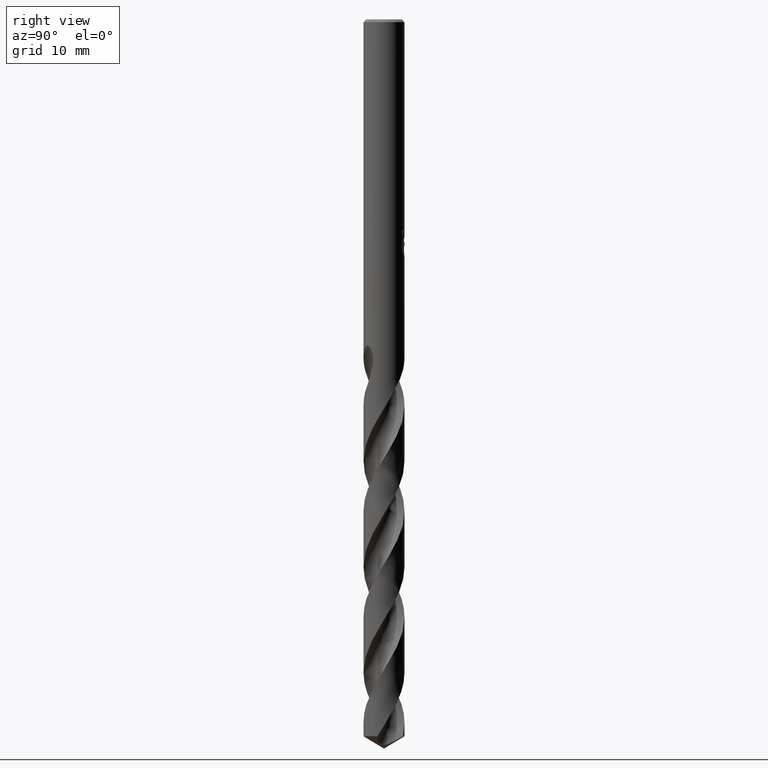
[diagram: clean part render]
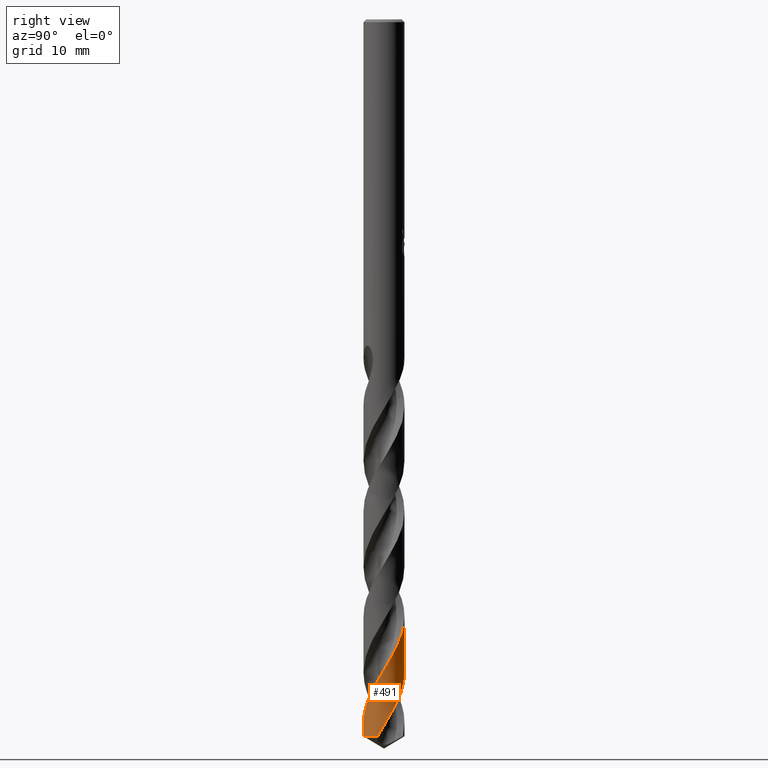
[diagram: same view with one face highlighted and labeled with its STEP entity id]
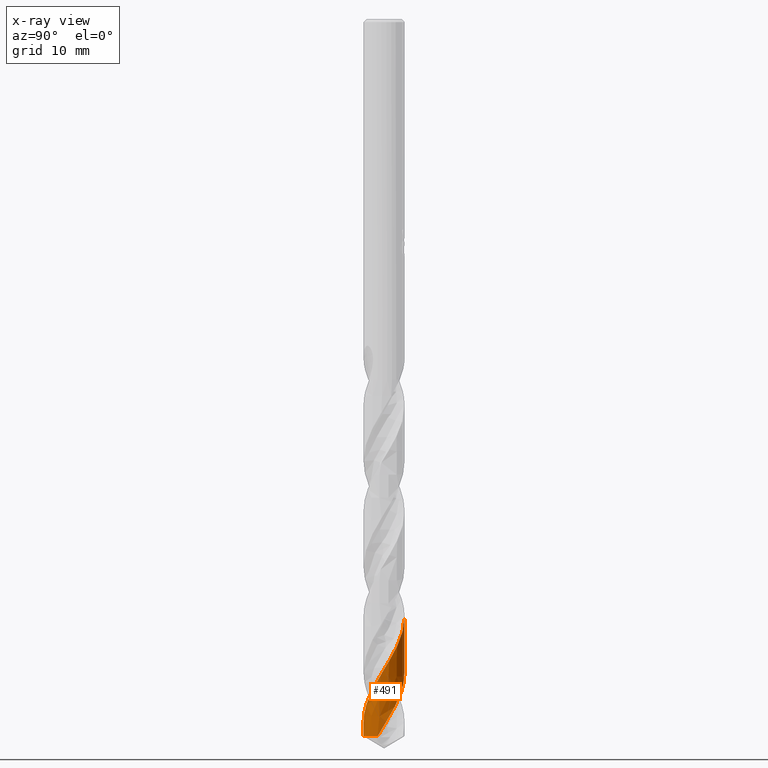
[diagram: x-ray of the same camera — body ghosted, the highlighted face saturated]
A machine part, right view. The second image highlights one B-rep face of the part: STEP entity #491.
The next image is the same camera in x-ray: the body ghosted, the highlighted face saturated — about 0% of this face is hidden behind the body in this view.
In plain terms, the highlighted conical surface has half-angle 0 deg.
Its self-contained STEP definition (entity closure, byte-faithful):
#279=EDGE_CURVE('',#505,#573,#778,.T.);
#297=EDGE_CURVE('',#361,#573,#797,.T.);
#361=VERTEX_POINT('',#869);
#423=VERTEX_POINT('',#937);
#425=EDGE_CURVE('',#505,#749,#939,.T.);
#491=ADVANCED_FACE('',(#1011),#1012,.T.);
#505=VERTEX_POINT('',#1027);
#511=EDGE_CURVE('',#361,#423,#1034,.T.);
#573=VERTEX_POINT('',#1103);
#607=EDGE_CURVE('',#749,#423,#1138,.T.);
#749=VERTEX_POINT('',#1292);
#778=B_SPLINE_CURVE_WITH_KNOTS('',3,(#1334,#1335,#1336,#1337,#1338,#1339,#1340,#1341,#1342,#1343,#1344,#1345,#1346,#1347,#1348,#1349,#1350,#1351,#1352,#1353,#1354,#1355,#1356,#1357,#1358,#1359,#1360,#1361,#1362,#1363,#1364,#1365,#1366,#1367,#1368,#1369,#1370,#1371,#1372,#1373,#1374,#1375,#1376,#1377,#1378,#1379,#1380,#1381,#1382,#1383,#1384,#1385,#1386,#1387,#1388,#1389,#1390,#1391,#1392,#1393,#1394,#1395,#1396,#1397,#1398,#1399,#1400,#1401,#1402,#1403,#1404,#1405,#1406,#1407,#1408,#1409,#1410,#1411,#1412,#1413,#1414,#1415,#1416,#1417,#1418,#1419,#1420,#1421,#1422,#1423,#1424,#1425,#1426,#1427,#1428,#1429,#1430,#1431,#1432,#1433,#1434,#1435,#1436,#1437,#1438,#1439,#1440,#1441,#1442,#1443,#1444,#1445,#1446,#1447,#1448,#1449,#1450,#1451,#1452,#1453,#1454,#1455,#1456,#1457,#1458,#1459,#1460,#1461,#1462,#1463,#1464,#1465,#1466,#1467,#1468,#1469,#1470,#1471,#1472,#1473,#1474,#1475,#1476,#1477,#1478,#1479,#1480,#1481),.UNSPECIFIED.,.F.,.F.,(4,2,2,2,2,2,2,2,2,2,2,2,2,2,2,2,2,2,2,2,2,2,2,2,2,2,2,2,2,2,2,2,2,2,2,2,2,2,2,2,2,2,2,2,2,2,2,2,2,2,2,2,2,2,2,2,2,2,2,2,2,2,2,2,2,2,2,2,2,2,2,2,2,4),(0.0,0.702120682108093,1.07274663117526,1.80338763568969,2.60304496966276,3.28402904088555,4.08200615143263,4.77401505445868,5.50854098786023,6.23454205250306,6.96847340817403,7.69617759174085,8.42969972122003,8.60829769339163,8.91638050688958,9.9908706176955,10.7163177623126,11.4520531624264,12.1782229034798,12.9133688147303,13.6413771510431,14.3760715093308,15.1057112594362,15.8400358501375,16.023758760494,16.3347975822184,17.4002800444994,18.1271362069396,18.8637922216987,19.5716694678996,20.3711283019373,21.1238067314638,21.9250453326184,22.5909097910908,23.3272713546039,24.0552669489787,24.7910893113764,25.5208424151199,26.3200625959287,27.0661025662939,27.8669089048403,28.5347123810873,29.2707405888273,29.998396321843,30.7338910959093,31.4632935118158,32.1983824197556,32.3777525284186,32.6867052124423,33.7619131881532,34.4921537839581,35.229526246712,35.9572415328643,36.69401615199,37.4235829383381,38.1599811939801,38.8911401154989,39.6269417773161,39.8109816986905,40.1178922865056,41.1779826150124,41.7263281565589,42.386784754348,43.2090884282347,43.4991619088045,44.7178406308594,45.169032849135,45.320487882245,45.4127045600733,45.4876222307573,45.5737903312194,45.7236627853465,46.0687443121665,46.5933376077372),.UNSPECIFIED.);
#797=LINE('',#1535,#1536);
#869=CARTESIAN_POINT('',(2.1879821291696E-013,2.24996653400407,-65.5467742340443));
#937=CARTESIAN_POINT('',(7.24319396396006E-015,-2.24999616208758,-77.1455952104852));
#939=CIRCLE('',#3833,2.25);
#1011=FACE_OUTER_BOUND('',#5325,.T.);
#1012=CONICAL_SURFACE('',#5326,2.24995,2.55440475941274E-006);
#1027=CARTESIAN_POINT('',(2.13435979439722,-0.712045130634758,-78.648063607188));
#1034=B_SPLINE_CURVE_WITH_KNOTS('',3,(#5536,#5537,#5538,#5539,#5540,#5541,#5542,#5543,#5544,#5545,#5546,#5547,#5548,#5549,#5550,#5551,#5552,#5553,#5554,#5555,#5556,#5557,#5558,#5559,#5560,#5561,#5562,#5563,#5564,#5565,#5566,#5567,#5568,#5569,#5570,#5571,#5572,#5573,#5574,#5575,#5576,#5577,#5578,#5579,#5580,#5581,#5582,#5583,#5584,#5585,#5586,#5587,#5588,#5589,#5590,#5591,#5592,#5593,#5594,#5595,#5596,#5597,#5598,#5599,#5600,#5601,#5602,#5603,#5604,#5605,#5606,#5607,#5608,#5609,#5610,#5611,#5612,#5613,#5614,#5615,#5616,#5617,#5618,#5619,#5620,#5621,#5622,#5623,#5624,#5625,#5626,#5627,#5628,#5629,#5630,#5631,#5632,#5633,#5634,#5635,#5636,#5637,#5638,#5639,#5640,#5641,#5642,#5643,#5644,#5645,#5646,#5647,#5648,#5649,#5650,#5651,#5652,#5653,#5654,#5655,#5656,#5657,#5658,#5659,#5660,#5661,#5662,#5663,#5664,#5665,#5666,#5667,#5668,#5669,#5670,#5671,#5672,#5673,#5674,#5675,#5676,#5677,#5678,#5679,#5680,#5681,#5682,#5683,#5684,#5685,#5686,#5687,#5688,#5689,#5690,#5691,#5692,#5693,#5694,#5695,#5696,#5697,#5698,#5699,#5700,#5701,#5702,#5703,#5704,#5705,#5706,#5707,#5708,#5709,#5710,#5711,#5712,#5713,#5714,#5715,#5716,#5717,#5718,#5719),.UNSPECIFIED.,.F.,.F.,(4,2,2,2,2,2,2,2,2,2,2,2,2,2,2,2,2,2,2,2,2,2,2,2,2,2,2,2,2,2,2,2,2,2,2,2,2,2,2,2,2,2,2,2,2,2,2,2,2,2,2,2,2,2,2,2,2,2,2,2,2,2,2,2,2,2,2,2,2,2,2,2,2,2,2,2,2,2,2,2,2,2,2,2,2,2,2,2,2,2,2,4),(0.0,0.113528017522762,0.182438752874555,0.191622563886129,0.196536742648031,0.199201707116549,0.201555536746268,0.203670514373242,0.205587701841331,0.2073390296175,0.208949757993832,0.210440173346031,0.211826785117802,0.213123189273374,0.214340701309492,0.487283281123833,0.551390927377459,0.586435756318567,0.615827112975256,0.650627689348066,0.713643294716692,0.800831219209486,1.15238975931798,1.38129947078745,1.81811965438008,2.71100722602999,3.07568403185272,4.1770227017457,4.60158154874718,5.54816069626624,5.98303403937285,6.72648345275203,7.50853321959851,8.40125467968831,8.87427129227954,9.56272843319645,9.95626947985988,10.3419958014934,11.0629774348866,11.8441419324168,12.739956282336,13.2050916335964,13.8914878884346,14.2849711571157,14.6731317380202,15.3944961955913,16.1754017082698,17.0752611424413,17.5343243207279,18.2181234528727,18.6115459991417,19.0021064402144,19.7208255375267,20.5019210020954,21.3965095545257,21.8627908423704,22.5476725486732,22.940936342978,23.329936576527,24.045152595477,24.8264722824271,25.7124316482568,26.1907684871737,26.8762889729872,27.2694203209889,27.6576558657113,28.3752213644718,29.1558767321429,30.0438999169725,30.5181654229282,31.203508058288,31.5965269802403,31.9845942944638,32.7046636831346,33.4846977500234,34.3810681859889,34.8428078053119,35.5259363917734,35.9188857336429,36.308881810994,37.0274208641582,37.8074776315,38.701386604409,39.1659029855205,39.850426287009,40.1493596719181,40.609051721775,41.3623017356017,42.1803504527815,42.7924599978821,43.7173629526239,44.6416454957495),.UNSPECIFIED.);
#1103=CARTESIAN_POINT('',(-2.35821454440323E-015,2.24998214770869,-71.6592372482266));
#1138=LINE('',#6688,#6689);
#1292=CARTESIAN_POINT('',(2.75533682711299E-016,-2.25,-78.648063607188));
#1334=CARTESIAN_POINT('',(2.13435979439723,-0.712045130634731,-78.648063607188));
#1335=CARTESIAN_POINT('',(2.17271062865759,-0.597086645618092,-78.4478422590222));
#1336=CARTESIAN_POINT('',(2.20181655538828,-0.478909642532757,-78.248735768695));
#1337=CARTESIAN_POINT('',(2.23149380428137,-0.295070491231581,-77.9435538186167));
#1338=CARTESIAN_POINT('',(2.2390152848436,-0.231162083760519,-77.8382621644111));
#1339=CARTESIAN_POINT('',(2.25319887064508,-0.0406261569772277,-77.5249070269813));
#1340=CARTESIAN_POINT('',(2.25191531907584,0.0863406580803815,-77.3163479619385));
#1341=CARTESIAN_POINT('',(2.22680532982938,0.350847742204903,-76.8809401797722));
#1342=CARTESIAN_POINT('',(2.20092639800159,0.487464925578912,-76.6547613543629));
#1343=CARTESIAN_POINT('',(2.13010393960918,0.734213518963264,-76.2333186588626));
#1344=CARTESIAN_POINT('',(2.08865036140092,0.844976948605764,-76.0386529611534));
#1345=CARTESIAN_POINT('',(1.98000306909098,1.07761040182824,-75.6176099770244));
#1346=CARTESIAN_POINT('',(1.90993310076624,1.19740528084286,-75.3918426845053));
#1347=CARTESIAN_POINT('',(1.75945249359991,1.40754918973336,-74.9676105515066));
#1348=CARTESIAN_POINT('',(1.68186409981325,1.49941070854751,-74.7697702136763));
#1349=CARTESIAN_POINT('',(1.5073669578971,1.67528173716229,-74.3635489427579));
#1350=CARTESIAN_POINT('',(1.41000373377278,1.75800934476177,-74.1554954778751));
#1351=CARTESIAN_POINT('',(1.20355891816257,1.9051963999828,-73.7395846840829));
#1352=CARTESIAN_POINT('',(1.09504458577847,1.96957151235799,-73.5319965988874));
#1353=CARTESIAN_POINT('',(0.866927444386957,2.08017204235244,-73.116247570638));
#1354=CARTESIAN_POINT('',(0.747746023977629,2.12592293103628,-72.9083615908544));
#1355=CARTESIAN_POINT('',(0.503965441914063,2.19645443571228,-72.4921698820498));
#1356=CARTESIAN_POINT('',(0.379965551394796,2.22126377726956,-72.2841159594859));
#1357=CARTESIAN_POINT('',(0.127918979002555,2.24994994495278,-71.8680379913923));
#1358=CARTESIAN_POINT('',(0.000398389548707412,2.25358377575107,-71.660289649464));
#1359=CARTESIAN_POINT('',(-0.157718424853439,2.2446610371803,-71.4006207438789));
#1360=CARTESIAN_POINT('',(-0.188615027812051,2.24227542241515,-71.3497787531987));
#1361=CARTESIAN_POINT('',(-0.272582087946866,2.23404698937711,-71.2111467306421));
#1362=CARTESIAN_POINT('',(-0.325448143592862,2.22695725856458,-71.1232076022519));
#1363=CARTESIAN_POINT('',(-0.561271325174053,2.1867666663397,-70.7296577792165));
#1364=CARTESIAN_POINT('',(-0.740062227088081,2.13292689725117,-70.427282292504));
#1365=CARTESIAN_POINT('',(-1.0252784045804,2.00673982552816,-69.9154875828672));
#1366=CARTESIAN_POINT('',(-1.13575840470998,1.94635066304906,-69.7083622871575));
#1367=CARTESIAN_POINT('',(-1.34716963613866,1.80660163305751,-69.2928606066276));
#1368=CARTESIAN_POINT('',(-1.44741636864264,1.72732191203844,-69.0847388842463));
#1369=CARTESIAN_POINT('',(-1.63212712232585,1.55383114240699,-68.6690031346949));
#1370=CARTESIAN_POINT('',(-1.71644585938217,1.46015632004714,-68.4616477644708));
#1371=CARTESIAN_POINT('',(-1.86961076462306,1.25824806440266,-68.0460679243528));
#1372=CARTESIAN_POINT('',(-1.93787809839352,1.15032634289566,-67.8381172586928));
#1373=CARTESIAN_POINT('',(-2.0548239379808,0.925203802449898,-67.4220368930693));
#1374=CARTESIAN_POINT('',(-2.10344553688114,0.808590908555337,-67.2141704584985));
#1375=CARTESIAN_POINT('',(-2.18104301099974,0.567135788737796,-66.7982144971819));
#1376=CARTESIAN_POINT('',(-2.20964791065752,0.442770831728879,-66.5904039220243));
#1377=CARTESIAN_POINT('',(-2.24538008474773,0.191391890157913,-66.1740507257047));
#1378=CARTESIAN_POINT('',(-2.25258202093471,0.0649834490610417,-65.9657410492786));
#1379=CARTESIAN_POINT('',(-2.24565198431779,-0.188671783737757,-65.5494906988719));
#1380=CARTESIAN_POINT('',(-2.231386325717,-0.315390718174368,-65.3418202940749));
#1381=CARTESIAN_POINT('',(-2.20024153466832,-0.471482637433813,-65.0808588404879));
#1382=CARTESIAN_POINT('',(-2.19335095725218,-0.502559933018407,-65.0286378004393));
#1383=CARTESIAN_POINT('',(-2.1730443308866,-0.585763763060884,-64.887916201535));
#1384=CARTESIAN_POINT('',(-2.15842678643602,-0.637511668484606,-64.7992636113065));
#1385=CARTESIAN_POINT('',(-2.08565061459242,-0.863868894318746,-64.4080673400582));
#1386=CARTESIAN_POINT('',(-2.00800597318428,-1.03161367026314,-64.1086446725368));
#1387=CARTESIAN_POINT('',(-1.8442495022538,-1.29494600771898,-63.5998662606779));
#1388=CARTESIAN_POINT('',(-1.7690372897496,-1.39594632987558,-63.3926907587109));
#1389=CARTESIAN_POINT('',(-1.60122350123837,-1.58577030707486,-62.9772377840597));
#1390=CARTESIAN_POINT('',(-1.50880314149151,-1.67394254230678,-62.7692347896128));
#1391=CARTESIAN_POINT('',(-1.31393609901417,-1.83054436281591,-62.3591751675411));
#1392=CARTESIAN_POINT('',(-1.21242681807588,-1.89929970831425,-62.157421512635));
#1393=CARTESIAN_POINT('',(-0.98524027790853,-2.02749828432307,-61.7295288337287));
#1394=CARTESIAN_POINT('',(-0.858755529332511,-2.08422008099312,-61.5040091647649));
#1395=CARTESIAN_POINT('',(-0.604656163028756,-2.17109346009308,-61.0634343746262));
#1396=CARTESIAN_POINT('',(-0.478042850262177,-2.20244289987651,-60.8489091021308));
#1397=CARTESIAN_POINT('',(-0.212249187663627,-2.24421191840144,-60.4078167067118));
#1398=CARTESIAN_POINT('',(-0.073578909405536,-2.25301394801344,-60.1817681120074));
#1399=CARTESIAN_POINT('',(0.180018903069058,-2.2456925239689,-59.7651860545919));
#1400=CARTESIAN_POINT('',(0.294751670777176,-2.23354089922809,-59.5753274228786));
#1401=CARTESIAN_POINT('',(0.533607243861662,-2.18947668192827,-59.177064336185));
#1402=CARTESIAN_POINT('',(0.656813746052997,-2.15571918518278,-58.9690358628422));
#1403=CARTESIAN_POINT('',(0.894783285266466,-2.06821670112605,-58.5531232765388));
#1404=CARTESIAN_POINT('',(1.00914858933294,-2.01489014961024,-58.3455097297673));
#1405=CARTESIAN_POINT('',(1.22911826564476,-1.88885424251787,-57.9297433378052));
#1406=CARTESIAN_POINT('',(1.33409736493009,-1.81622696260954,-57.7218656138528));
#1407=CARTESIAN_POINT('',(1.52981796272251,-1.65465453521622,-57.3056453373822));
#1408=CARTESIAN_POINT('',(1.6202400746323,-1.56621813417407,-57.0975518216479));
#1409=CARTESIAN_POINT('',(1.79327127706149,-1.36586032179104,-56.6633239619862));
#1410=CARTESIAN_POINT('',(1.87384262830599,-1.25303409275789,-56.4377706342916));
#1411=CARTESIAN_POINT('',(2.00859059424155,-1.02199683224124,-55.9989419535935));
#1412=CARTESIAN_POINT('',(2.0639172388588,-0.905087875704585,-55.7862084335));
#1413=CARTESIAN_POINT('',(2.15727989415064,-0.653925757691966,-55.3469131649033));
#1414=CARTESIAN_POINT('',(2.19345743672607,-0.519778721394495,-55.1208788955579));
#1415=CARTESIAN_POINT('',(2.23673757289441,-0.269404621064128,-54.7036746832763));
#1416=CARTESIAN_POINT('',(2.24763238403525,-0.154154527148891,-54.5131748615257));
#1417=CARTESIAN_POINT('',(2.25178832345615,0.0890836691572575,-54.1142741878021));
#1418=CARTESIAN_POINT('',(2.24311908997714,0.216536237439153,-53.9062451808355));
#1419=CARTESIAN_POINT('',(2.20451650795924,0.467124888292082,-53.4903343603521));
#1420=CARTESIAN_POINT('',(2.17491466002604,0.58978877714637,-53.2827233780653));
#1421=CARTESIAN_POINT('',(2.09497574045941,0.830373886508685,-52.8669571450298));
#1422=CARTESIAN_POINT('',(2.04459487702786,0.947665505033432,-52.6590771713457));
#1423=CARTESIAN_POINT('',(1.92501924622252,1.1715230945828,-52.2428592703532));
#1424=CARTESIAN_POINT('',(1.85626031279723,1.27767590688376,-52.0347706978691));
#1425=CARTESIAN_POINT('',(1.7009365863915,1.47824825447245,-51.6186654626536));
#1426=CARTESIAN_POINT('',(1.61456661577715,1.57212601500905,-51.4109242849144));
#1427=CARTESIAN_POINT('',(1.4978045484141,1.67920551198505,-51.1511542477995));
#1428=CARTESIAN_POINT('',(1.47448693969098,1.69971594431177,-51.1002032857171));
#1429=CARTESIAN_POINT('',(1.40992319155681,1.75418197280907,-50.9614052397509));
#1430=CARTESIAN_POINT('',(1.36792687820453,1.78712108953769,-50.8734086927323));
#1431=CARTESIAN_POINT('',(1.17478003261348,1.92782921091857,-50.4802680068512));
#1432=CARTESIAN_POINT('',(1.01171976811783,2.01820555675406,-50.178342198023));
#1433=CARTESIAN_POINT('',(0.722096025306141,2.13463916659125,-49.6661074598282));
#1434=CARTESIAN_POINT('',(0.6012158135805,2.17179039872156,-49.4580712809071));
#1435=CARTESIAN_POINT('',(0.353031414643446,2.22571594750084,-49.0416596429995));
#1436=CARTESIAN_POINT('',(0.226285302137958,2.24214562995388,-48.8335336707623));
#1437=CARTESIAN_POINT('',(-0.0268664891674188,2.2532803278626,-48.4178087219461));
#1438=CARTESIAN_POINT('',(-0.152789800031158,2.24825775211358,-48.2104684101962));
#1439=CARTESIAN_POINT('',(-0.404272081853353,2.21697186003352,-47.7949010681785));
#1440=CARTESIAN_POINT('',(-0.529202091859048,2.19051013697102,-47.5869481883921));
#1441=CARTESIAN_POINT('',(-0.772020687529778,2.11708584287421,-47.1708766163389));
#1442=CARTESIAN_POINT('',(-0.88944899393196,2.0704944427439,-46.9630259001907));
#1443=CARTESIAN_POINT('',(-1.11650179663012,1.95749468718515,-46.5470567094669));
#1444=CARTESIAN_POINT('',(-1.22552375354531,1.89115059243753,-46.3392174834227));
#1445=CARTESIAN_POINT('',(-1.4304413840468,1.74125287186272,-45.9228578940957));
#1446=CARTESIAN_POINT('',(-1.52596344100426,1.65817649329062,-45.7145645850436));
#1447=CARTESIAN_POINT('',(-1.70272531137925,1.47615689466594,-45.2983730131836));
#1448=CARTESIAN_POINT('',(-1.78348694294652,1.37749522887567,-45.0907517986771));
#1449=CARTESIAN_POINT('',(-1.8734914719838,1.24625629194561,-44.829851556764));
#1450=CARTESIAN_POINT('',(-1.89092559400159,1.2196399482506,-44.7776546051557));
#1451=CARTESIAN_POINT('',(-1.93587850521596,1.14773418797328,-44.6383205601176));
#1452=CARTESIAN_POINT('',(-1.96233716977218,1.10187911439194,-44.5510390616528));
#1453=CARTESIAN_POINT('',(-2.07280417114006,0.893841460384538,-44.1634216169283));
#1454=CARTESIAN_POINT('',(-2.13857855543799,0.722552056966591,-43.8660000525671));
#1455=CARTESIAN_POINT('',(-2.20584260731231,0.453118656227251,-43.4104969160652));
#1456=CARTESIAN_POINT('',(-2.22293187172187,0.360017381095408,-43.2546721983958));
#1457=CARTESIAN_POINT('',(-2.24759044371851,0.152982578890302,-42.9124037554337));
#1458=CARTESIAN_POINT('',(-2.25246320850493,0.0389234776420421,-42.7263163752786));
#1459=CARTESIAN_POINT('',(-2.24391054556891,-0.217090728607046,-42.3067982259907));
#1460=CARTESIAN_POINT('',(-2.2256942556409,-0.358144173388708,-42.0727299632587));
#1461=CARTESIAN_POINT('',(-2.18364252711159,-0.544295798029729,-41.7586832224183));
#1462=CARTESIAN_POINT('',(-2.17104307437277,-0.592577391147884,-41.6768780462065));
#1463=CARTESIAN_POINT('',(-2.09699112470577,-0.841927652805757,-41.2517011888916));
#1464=CARTESIAN_POINT('',(-2.01109378519671,-1.02822392728173,-40.9275116491741));
#1465=CARTESIAN_POINT('',(-1.8658986786204,-1.25933383924604,-40.4688473804359));
#1466=CARTESIAN_POINT('',(-1.82453769850541,-1.31836504966864,-40.344730436768));
#1467=CARTESIAN_POINT('',(-1.76705805044145,-1.39288299160465,-40.1764807741941));
#1468=CARTESIAN_POINT('',(-1.75729078769461,-1.40506436874146,-40.1478162364703));
#1469=CARTESIAN_POINT('',(-1.74228861902943,-1.42357600729098,-40.1052584687011));
#1470=CARTESIAN_POINT('',(-1.73648357397925,-1.4306529829616,-40.0892349448));
#1471=CARTESIAN_POINT('',(-1.72571906303921,-1.44360908004335,-40.0603314195979));
#1472=CARTESIAN_POINT('',(-1.72080722150277,-1.44946148620177,-40.0474308903376));
#1473=CARTESIAN_POINT('',(-1.71005247335706,-1.46214076631262,-40.0198053372863));
#1474=CARTESIAN_POINT('',(-1.70418287381937,-1.46897922277553,-40.0051033053432));
#1475=CARTESIAN_POINT('',(-1.68777195759264,-1.48786205671992,-39.9650252313939));
#1476=CARTESIAN_POINT('',(-1.67699509775376,-1.50000598911532,-39.9398181789231));
#1477=CARTESIAN_POINT('',(-1.64015277931238,-1.54058863144023,-39.8572958269622));
#1478=CARTESIAN_POINT('',(-1.61257125836848,-1.56952673477293,-39.8011775511049));
#1479=CARTESIAN_POINT('',(-1.53771644633942,-1.64362915462922,-39.6626225959936));
#1480=CARTESIAN_POINT('',(-1.48816527119179,-1.68890755359324,-39.5826146057977));
#1481=CARTESIAN_POINT('',(-1.43370499056795,-1.73393773460644,-39.505));
#1535=CARTESIAN_POINT('',(-2.75533053477001E-016,2.24995,-59.074031803594));
#1536=VECTOR('',#8006,1.0);
#3833=AXIS2_PLACEMENT_3D('',#8204,#8205,#8206);
#5325=EDGE_LOOP('',(#8293,#8294,#8295,#8296,#8297));
#5326=AXIS2_PLACEMENT_3D('',#8298,#8299,#8300);
#5536=CARTESIAN_POINT('',(-1.56385330917524,1.6175329656156,-39.505));
#5537=CARTESIAN_POINT('',(-1.55039704813101,1.63054278231393,-39.5378898399312));
#5538=CARTESIAN_POINT('',(-1.53672818517016,1.64343388963666,-39.5708297111655));
#5539=CARTESIAN_POINT('',(-1.51435674056502,1.66400326431643,-39.6237126919113));
#5540=CARTESIAN_POINT('',(-1.50582685666411,1.67172695455165,-39.643646185708));
#5541=CARTESIAN_POINT('',(-1.49603930179704,1.68045253009666,-39.6662307807119));
#5542=CARTESIAN_POINT('',(-1.49488661845643,1.6814780201879,-39.6688861254926));
#5543=CARTESIAN_POINT('',(-1.49311445409636,1.68305136802292,-39.6729616235769));
#5544=CARTESIAN_POINT('',(-1.49249623619014,1.68359962062603,-39.6743820731186));
#5545=CARTESIAN_POINT('',(-1.49154198635408,1.68444493630682,-39.6765726170421));
#5546=CARTESIAN_POINT('',(-1.49120630960521,1.68474211429828,-39.6773428061762));
#5547=CARTESIAN_POINT('',(-1.49057386971088,1.68530168245783,-39.6787931838308));
#5548=CARTESIAN_POINT('',(-1.49027713987101,1.68556408251106,-39.6794733795051));
#5549=CARTESIAN_POINT('',(-1.48971357254424,1.68606218338974,-39.6807646845243));
#5550=CARTESIAN_POINT('',(-1.48944675797168,1.68629789086645,-39.6813757985647));
#5551=CARTESIAN_POINT('',(-1.48893790405001,1.68674720401219,-39.682540823444));
#5552=CARTESIAN_POINT('',(-1.48869588167071,1.68696081480138,-39.683094738233));
#5553=CARTESIAN_POINT('',(-1.48823262861636,1.68736950808898,-39.6841546038982));
#5554=CARTESIAN_POINT('',(-1.48801141111796,1.68756459430288,-39.6846605573275));
#5555=CARTESIAN_POINT('',(-1.48758661333,1.68793906440857,-39.6856318086729));
#5556=CARTESIAN_POINT('',(-1.48738304326675,1.6881184512044,-39.6860971086419));
#5557=CARTESIAN_POINT('',(-1.48699100473786,1.68846379121081,-39.6869929217408));
#5558=CARTESIAN_POINT('',(-1.48680254431307,1.68862974674691,-39.6874234365944));
#5559=CARTESIAN_POINT('',(-1.48643865985355,1.68895006999603,-39.68825445501));
#5560=CARTESIAN_POINT('',(-1.48626324213624,1.6891044396795,-39.6886549602467));
#5561=CARTESIAN_POINT('',(-1.48592374107003,1.68940311081388,-39.6894298918286));
#5562=CARTESIAN_POINT('',(-1.48575966290998,1.68954741380433,-39.6898043193911));
#5563=CARTESIAN_POINT('',(-1.4854414234279,1.68982721593008,-39.6905303681646));
#5564=CARTESIAN_POINT('',(-1.4852872663549,1.68996271633215,-39.6908819903931));
#5565=CARTESIAN_POINT('',(-1.45056710661011,1.72047248940882,-39.7700583651725));
#5566=CARTESIAN_POINT('',(-1.41531312416943,1.74962932405671,-39.8463646753294));
#5567=CARTESIAN_POINT('',(-1.36890145285043,1.78557794049927,-39.9420757284499));
#5568=CARTESIAN_POINT('',(-1.36000072699136,1.79236704034254,-39.9602350082046));
#5569=CARTESIAN_POINT('',(-1.34610238085775,1.80280385541843,-39.9883174450806));
#5570=CARTESIAN_POINT('',(-1.34116873236251,1.80647726902061,-39.9982339774164));
#5571=CARTESIAN_POINT('',(-1.33205516221038,1.81320481145907,-40.0164630930187));
#5572=CARTESIAN_POINT('',(-1.3278838436978,1.81626191481228,-40.0247727591514));
#5573=CARTESIAN_POINT('',(-1.3187406229942,1.82291442399453,-40.0429183386556));
#5574=CARTESIAN_POINT('',(-1.31376499729364,1.8265036569913,-40.0527490569064));
#5575=CARTESIAN_POINT('',(-1.2997246490537,1.83654462935032,-40.0803787851439));
#5576=CARTESIAN_POINT('',(-1.29062532428852,1.8429506749465,-40.09815620766));
#5577=CARTESIAN_POINT('',(-1.26880600887542,1.85807053784029,-40.1405470381205));
#5578=CARTESIAN_POINT('',(-1.25619804617347,1.8666206264472,-40.1648857710417));
#5579=CARTESIAN_POINT('',(-1.19008571681486,1.91044351277529,-40.2922642332679));
#5580=CARTESIAN_POINT('',(-1.1359883067809,1.94306986908471,-40.3951132569336));
#5581=CARTESIAN_POINT('',(-1.04521423108272,1.99280091950337,-40.564642127255));
#5582=CARTESIAN_POINT('',(-1.00893951268267,2.01140764631934,-40.6316238696582));
#5583=CARTESIAN_POINT('',(-0.902190276794589,2.06255922994313,-40.8262957633343));
#5584=CARTESIAN_POINT('',(-0.830435947319903,2.09248173638974,-40.9540967925311));
#5585=CARTESIAN_POINT('',(-0.607718776124382,2.17208946169979,-41.3429266529512));
#5586=CARTESIAN_POINT('',(-0.452841203646463,2.20959695519262,-41.6021863825828));
#5587=CARTESIAN_POINT('',(-0.230710907663904,2.23898923351544,-41.9695278123659));
#5588=CARTESIAN_POINT('',(-0.166011997078753,2.24471115399037,-42.0760409781982));
#5589=CARTESIAN_POINT('',(0.0945167434911222,2.25644313379906,-42.5045074966571));
#5590=CARTESIAN_POINT('',(0.290734787638366,2.23965937483196,-42.8254230326971));
#5591=CARTESIAN_POINT('',(0.556309257610424,2.1813611667094,-43.2711823375037));
#5592=CARTESIAN_POINT('',(0.629308835519474,2.16143045515653,-43.3950482155845));
#5593=CARTESIAN_POINT('',(0.861327349474164,2.08533705776452,-43.79573629941));
#5594=CARTESIAN_POINT('',(1.01513448335577,2.01495535070788,-44.0716582024019));
#5595=CARTESIAN_POINT('',(1.22604486534038,1.88810061265639,-44.4753185713914));
#5596=CARTESIAN_POINT('',(1.29030485672142,1.84478095382697,-44.6022372176446));
#5597=CARTESIAN_POINT('',(1.4579811933077,1.71869833995532,-44.9466598563478));
#5598=CARTESIAN_POINT('',(1.5565793578377,1.62994315106633,-45.1637437559267));
#5599=CARTESIAN_POINT('',(1.74173704053879,1.43104147977562,-45.6095916893749));
#5600=CARTESIAN_POINT('',(1.82695876301259,1.32050582690291,-45.8373300149998));
#5601=CARTESIAN_POINT('',(1.98638545306531,1.06848912785101,-46.3269066057477));
#5602=CARTESIAN_POINT('',(2.05692633196094,0.925468858894041,-46.587281914771));
#5603=CARTESIAN_POINT('',(2.1408834581059,0.697035908655683,-46.9864245828426));
#5604=CARTESIAN_POINT('',(2.16548251832316,0.616376403158802,-47.1244529216221));
#5605=CARTESIAN_POINT('',(2.21462859002619,0.415445898022737,-47.4640023297181));
#5606=CARTESIAN_POINT('',(2.23398069103033,0.294139320542784,-47.6651077424378));
#5607=CARTESIAN_POINT('',(2.24870450760109,0.101937332676481,-47.9814033261701));
#5608=CARTESIAN_POINT('',(2.25079035341487,0.0318035948608825,-48.0963516068174));
#5609=CARTESIAN_POINT('',(2.24842489904851,-0.10706690900431,-48.3241135590162));
#5610=CARTESIAN_POINT('',(2.24410482298737,-0.175687834041982,-48.4367497548377));
#5611=CARTESIAN_POINT('',(2.22273012981382,-0.371641540476446,-48.7603285523211));
#5612=CARTESIAN_POINT('',(2.19789776089435,-0.497905373619195,-48.9709123754017));
#5613=CARTESIAN_POINT('',(2.12397362213059,-0.755166188600554,-49.4100610692717));
#5614=CARTESIAN_POINT('',(2.07321019834938,-0.885055661669185,-49.637629234731));
#5615=CARTESIAN_POINT('',(1.93921135928928,-1.15199309483995,-50.1280031701662));
#5616=CARTESIAN_POINT('',(1.85263415560783,-1.28663144562229,-50.3893461059455));
#5617=CARTESIAN_POINT('',(1.70049478656373,-1.47559198321879,-50.7872046825227));
#5618=CARTESIAN_POINT('',(1.64498685655453,-1.53722673779379,-50.9229768351589));
#5619=CARTESIAN_POINT('',(1.49949788886723,-1.68185736072045,-51.2597184783684));
#5620=CARTESIAN_POINT('',(1.40587507010873,-1.76087061721322,-51.4602843194696));
#5621=CARTESIAN_POINT('',(1.2491884027552,-1.87260154455731,-51.7760555718754));
#5622=CARTESIAN_POINT('',(1.19021144141462,-1.91063090459517,-51.8910219068773));
#5623=CARTESIAN_POINT('',(1.06969090343441,-1.98059220579374,-52.1195470936748));
#5624=CARTESIAN_POINT('',(1.00829459114372,-2.01254090653088,-52.2329264746931));
#5625=CARTESIAN_POINT('',(0.828922438335689,-2.09561569461261,-52.5574260609141));
#5626=CARTESIAN_POINT('',(0.707858196266039,-2.1395495259075,-52.7681840817066));
#5627=CARTESIAN_POINT('',(0.449252442953128,-2.20901664948817,-53.2074996874926));
#5628=CARTESIAN_POINT('',(0.311802114815094,-2.23256493182015,-53.4350614651239));
#5629=CARTESIAN_POINT('',(0.0132409050583163,-2.25560264804251,-53.9266869173251));
#5630=CARTESIAN_POINT('',(-0.147537108487565,-2.25082144068502,-54.189275617771));
#5631=CARTESIAN_POINT('',(-0.38758811370421,-2.21781406292062,-54.5866569132733));
#5632=CARTESIAN_POINT('',(-0.467982060711237,-2.202251173881,-54.7206999341571));
#5633=CARTESIAN_POINT('',(-0.665528472654968,-2.15270753368596,-55.0550048051162));
#5634=CARTESIAN_POINT('',(-0.781143164833108,-2.11350531907875,-55.254874009271));
#5635=CARTESIAN_POINT('',(-0.957396234540351,-2.03728879694206,-55.5699623113082));
#5636=CARTESIAN_POINT('',(-1.02044420084103,-2.00645268765129,-55.6849455143052));
#5637=CARTESIAN_POINT('',(-1.14303083722149,-1.93921905199676,-55.9142228007908));
#5638=CARTESIAN_POINT('',(-1.20248725997837,-1.90292120731712,-56.0283345906888));
#5639=CARTESIAN_POINT('',(-1.36626280457134,-1.79219865808702,-56.35285920258));
#5640=CARTESIAN_POINT('',(-1.46608288349517,-1.71151058532121,-56.5629108392572));
#5641=CARTESIAN_POINT('',(-1.65895239940281,-1.52627767347902,-57.0016409873473));
#5642=CARTESIAN_POINT('',(-1.75019679944857,-1.42071904711485,-57.229323448199));
#5643=CARTESIAN_POINT('',(-1.92373201603249,-1.17768096551966,-57.7196084530675));
#5644=CARTESIAN_POINT('',(-2.00236380739794,-1.03839368640772,-57.9807504072638));
#5645=CARTESIAN_POINT('',(-2.09858513377311,-0.815551494921306,-58.3788209864575));
#5646=CARTESIAN_POINT('',(-2.12728357110964,-0.737456453540263,-58.5150066130773));
#5647=CARTESIAN_POINT('',(-2.18729461256065,-0.541220845001704,-58.8518386333829));
#5648=CARTESIAN_POINT('',(-2.21344253691695,-0.421736374978092,-59.0520813256979));
#5649=CARTESIAN_POINT('',(-2.23913773950536,-0.231210149273944,-59.3675319450186));
#5650=CARTESIAN_POINT('',(-2.24525812281879,-0.161299216498824,-59.4825021954782));
#5651=CARTESIAN_POINT('',(-2.2509153564056,-0.0218637569603379,-59.7113438826679));
#5652=CARTESIAN_POINT('',(-2.2505183353222,0.0475384202851299,-59.8250337580714));
#5653=CARTESIAN_POINT('',(-2.24030096303856,0.244122276289932,-60.1481726055327));
#5654=CARTESIAN_POINT('',(-2.22286948353015,0.3706915556636,-60.357266793999));
#5655=CARTESIAN_POINT('',(-2.16413519742551,0.631055918231579,-60.7951693126256));
#5656=CARTESIAN_POINT('',(-2.12091825618091,0.763808625584084,-61.0229808481344));
#5657=CARTESIAN_POINT('',(-2.00312489849555,1.03669598985745,-61.5109516936796));
#5658=CARTESIAN_POINT('',(-1.92540921123092,1.17477262132089,-61.7696733679337));
#5659=CARTESIAN_POINT('',(-1.78438065522565,1.37316405048382,-62.1688680141945));
#5660=CARTESIAN_POINT('',(-1.73103490664482,1.43982824201098,-62.3086067768715));
#5661=CARTESIAN_POINT('',(-1.59237542281421,1.59423918844155,-62.6492548339283));
#5662=CARTESIAN_POINT('',(-1.50341212086795,1.67839862593423,-62.8497430584454));
#5663=CARTESIAN_POINT('',(-1.35334515389395,1.7988040910197,-63.1654354656678));
#5664=CARTESIAN_POINT('',(-1.29661788945994,1.84011598478565,-63.2804010312761));
#5665=CARTESIAN_POINT('',(-1.18019225644363,1.9168390233065,-63.5090480923585));
#5666=CARTESIAN_POINT('',(-1.12063821465873,1.9522526366398,-63.6225490899115));
#5667=CARTESIAN_POINT('',(-0.946681222496742,2.04511598243414,-63.946246927517));
#5668=CARTESIAN_POINT('',(-0.828834579285101,2.09565151452692,-64.1560856722191));
#5669=CARTESIAN_POINT('',(-0.57509428168963,2.17967937303677,-64.5946085629623));
#5670=CARTESIAN_POINT('',(-0.439139583401412,2.21108040941058,-64.8222950433693));
#5671=CARTESIAN_POINT('',(-0.144254181338227,2.25091396832201,-65.3108208153074));
#5672=CARTESIAN_POINT('',(0.0145440740121428,2.25549444614348,-65.5702158122881));
#5673=CARTESIAN_POINT('',(0.256952814287532,2.23684904116935,-65.9689409328437));
#5674=CARTESIAN_POINT('',(0.34088098186497,2.22560372542905,-66.1075347624476));
#5675=CARTESIAN_POINT('',(0.544010583535111,2.18663103323488,-66.4470409026426));
#5676=CARTESIAN_POINT('',(0.66200886327413,2.15384747654279,-66.6475371371532));
#5677=CARTESIAN_POINT('',(0.842583883350393,2.08742315105822,-66.9632391338353));
#5678=CARTESIAN_POINT('',(0.907242149048893,2.06014568050271,-67.0782062509264));
#5679=CARTESIAN_POINT('',(1.03302782911306,2.00000536088604,-67.3068396180291));
#5680=CARTESIAN_POINT('',(1.09408336198757,1.96726823455598,-67.4203259249715));
#5681=CARTESIAN_POINT('',(1.26379664012,1.86592890860038,-67.7448042439359));
#5682=CARTESIAN_POINT('',(1.3682640769791,1.79073834673767,-67.9554342684326));
#5683=CARTESIAN_POINT('',(1.57137247637759,1.61633809993579,-68.3946374368756));
#5684=CARTESIAN_POINT('',(1.66831284238041,1.51607288095904,-68.6222142425409));
#5685=CARTESIAN_POINT('',(1.85537973642431,1.28277894642862,-69.1131469205787));
#5686=CARTESIAN_POINT('',(1.94186640245083,1.14767415409316,-69.3750346739819));
#5687=CARTESIAN_POINT('',(2.05010961847589,0.930722048522131,-69.7726511187462));
#5688=CARTESIAN_POINT('',(2.08281648614027,0.855021683758935,-69.9076333887798));
#5689=CARTESIAN_POINT('',(2.15342338044687,0.663345167019034,-70.2429231086942));
#5690=CARTESIAN_POINT('',(2.18619807587394,0.545718395625237,-70.4428335445457));
#5691=CARTESIAN_POINT('',(2.22256151581742,0.357138753589142,-70.7579613784436));
#5692=CARTESIAN_POINT('',(2.23261614143838,0.287677789433624,-70.8729427668217));
#5693=CARTESIAN_POINT('',(2.24615199711457,0.148537772461003,-71.1021887288672));
#5694=CARTESIAN_POINT('',(2.2496707926721,0.0789829266574675,-71.2162711682477));
#5695=CARTESIAN_POINT('',(2.25049764203102,-0.118812377258627,-71.5409632739291));
#5696=CARTESIAN_POINT('',(2.24007388006718,-0.246865423758336,-71.7512108729041));
#5697=CARTESIAN_POINT('',(2.19568370387163,-0.510675488134641,-72.1901050158555));
#5698=CARTESIAN_POINT('',(2.15988674072601,-0.645515622017417,-72.4177557524331));
#5699=CARTESIAN_POINT('',(2.05685241471511,-0.92586860610049,-72.9081199642059));
#5700=CARTESIAN_POINT('',(1.9860427368046,-1.06937083671756,-73.1693717671052));
#5701=CARTESIAN_POINT('',(1.85620916753904,-1.27428814451858,-73.5671986279849));
#5702=CARTESIAN_POINT('',(1.80798762960179,-1.34182602806608,-73.7030300125686));
#5703=CARTESIAN_POINT('',(1.67978950847771,-1.50189210331741,-74.0396402111231));
#5704=CARTESIAN_POINT('',(1.59576333713391,-1.5908876188684,-74.2400164736569));
#5705=CARTESIAN_POINT('',(1.46524170124365,-1.70832303470049,-74.5281056766514));
#5706=CARTESIAN_POINT('',(1.42430325819627,-1.74260271430934,-74.6156324392796));
#5707=CARTESIAN_POINT('',(1.31739390404278,-1.82583401530293,-74.8378287982651));
#5708=CARTESIAN_POINT('',(1.24992350531637,-1.87266695344055,-74.972272979366));
#5709=CARTESIAN_POINT('',(1.06558822173906,-1.98621762282653,-75.3276447724626));
#5710=CARTESIAN_POINT('',(0.944992005666249,-2.04635005267873,-75.5480936271792));
#5711=CARTESIAN_POINT('',(0.683677274597404,-2.14858002145791,-76.0084107638766));
#5712=CARTESIAN_POINT('',(0.542821752463262,-2.18840834085949,-76.2471605311304));
#5713=CARTESIAN_POINT('',(0.291636088557757,-2.23368733222931,-76.6662551109645));
#5714=CARTESIAN_POINT('',(0.182832059495217,-2.24521644373587,-76.8454756949038));
#5715=CARTESIAN_POINT('',(-0.0914590604161079,-2.25419437185201,-77.2958153026761));
#5716=CARTESIAN_POINT('',(-0.256609212310425,-2.24140784554184,-77.565795573607));
#5717=CARTESIAN_POINT('',(-0.580999087114653,-2.17994658980858,-78.1075996546901));
#5718=CARTESIAN_POINT('',(-0.739316192922375,-2.13147254606652,-78.3773358555487));
#5719=CARTESIAN_POINT('',(-0.8909456754003,-2.06608707548484,-78.648063607188));
#6688=CARTESIAN_POINT('',(2.7552755967953E-016,-2.24995,-59.074031803594));
#6689=VECTOR('',#8407,1.0);
#8006=DIRECTION('',(-3.12814029860756E-022,2.55440475940996E-006,-0.999999999996738));
#8204=CARTESIAN_POINT('',(0.0,0.0,-78.648063607188));
#8205=DIRECTION('',(0.0,0.0,-1.0));
#8206=DIRECTION('',(0.0,1.0,0.0));
#8293=ORIENTED_EDGE('',*,*,#297,.F.);
#8294=ORIENTED_EDGE('',*,*,#511,.T.);
#8295=ORIENTED_EDGE('',*,*,#607,.F.);
#8296=ORIENTED_EDGE('',*,*,#425,.F.);
#8297=ORIENTED_EDGE('',*,*,#279,.T.);
#8298=CARTESIAN_POINT('',(0.0,0.0,-59.074031803594));
#8299=DIRECTION('',(0.0,-0.0,-1.0));
#8300=DIRECTION('',(0.0,1.0,0.0));
#8407=DIRECTION('',(-3.12814029860756E-022,2.55440475940996E-006,0.999999999996738));